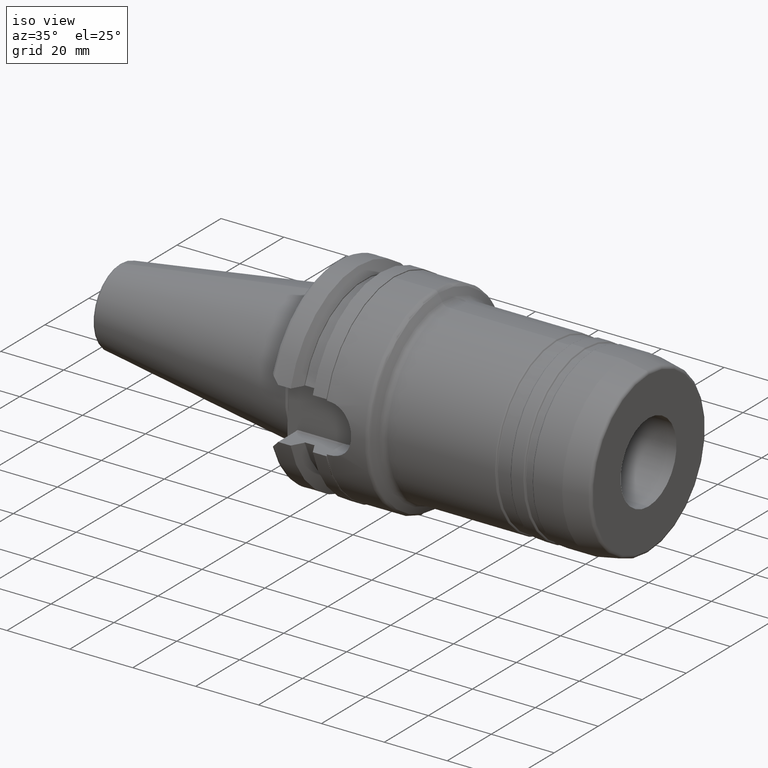
[diagram: clean part render]
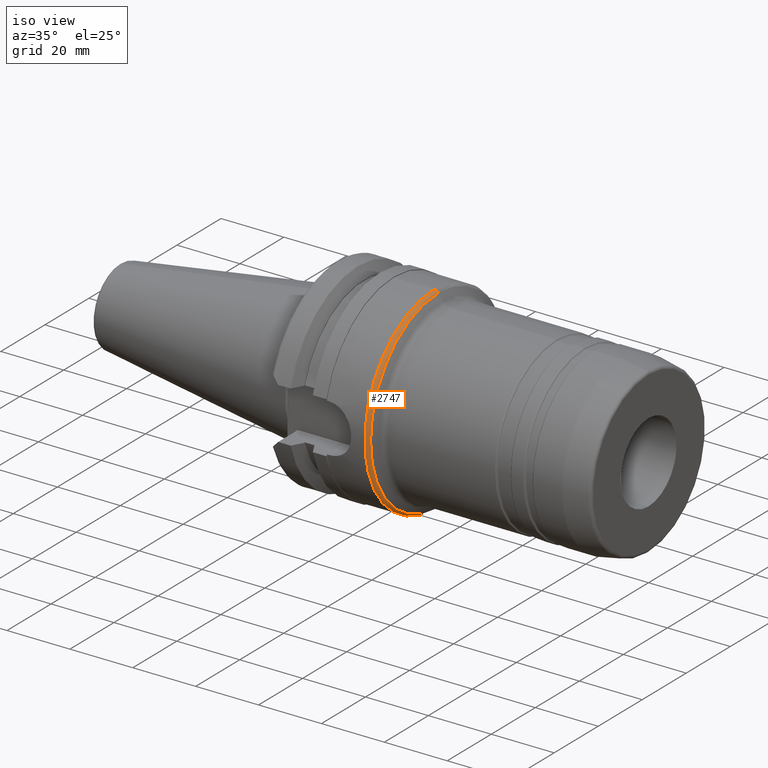
[diagram: same view with one face highlighted and labeled with its STEP entity id]
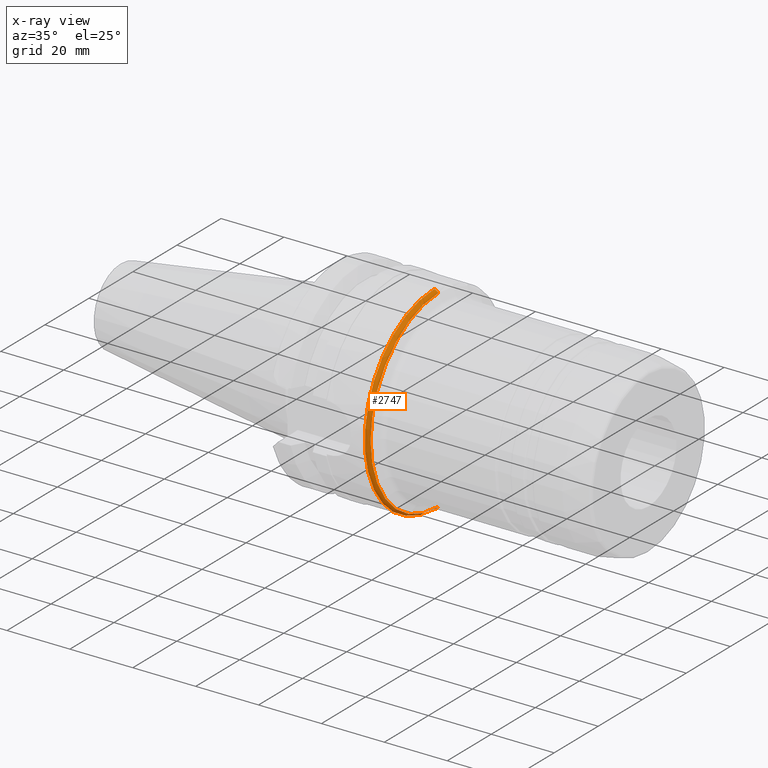
[diagram: x-ray of the same camera — body ghosted, the highlighted face saturated]
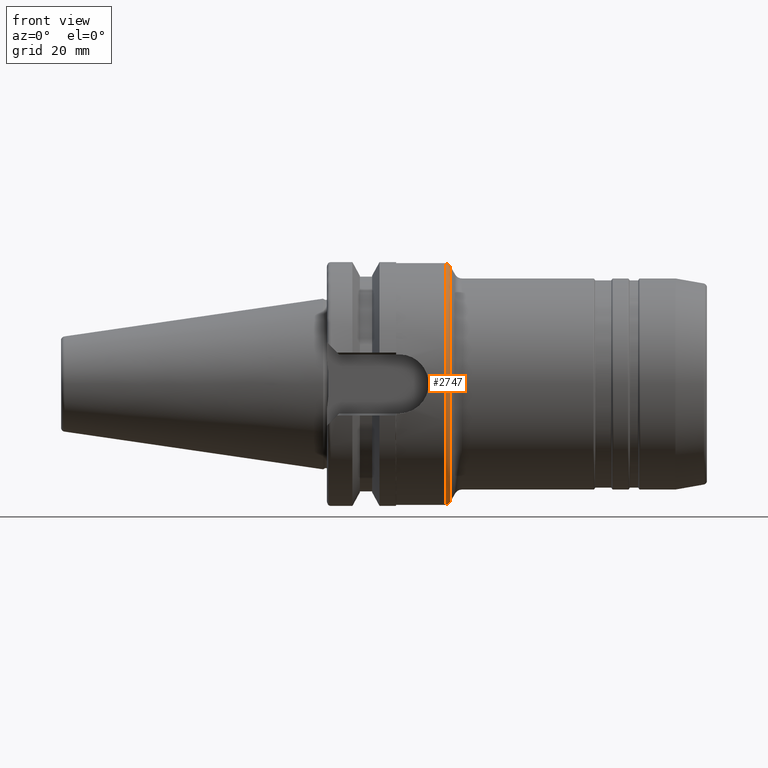
[diagram: same view with one face highlighted and labeled with its STEP entity id]
A machine part, iso view. The second image highlights one B-rep face of the part: STEP entity #2747.
The next image is the same camera in x-ray: the body ghosted, the highlighted face saturated — about 0% of this face is hidden behind the body in this view.
A second angle (front view) of the same face is appended — the face is thin or edge-on in the first view.
In plain terms, the highlighted toroidal blend (fillet) surface has major radius 30 mm and minor (blend) radius 1.5 mm.
Its self-contained STEP definition (entity closure, byte-faithful):
#640=CARTESIAN_POINT('',(3.182457351943E1,0.E0,-3.E1));
#641=DIRECTION('',(0.E0,1.E0,0.E0));
#642=DIRECTION('',(8.660254037844E-1,0.E0,-5.E-1));
#643=AXIS2_PLACEMENT_3D('',#640,#641,#642);
#645=CARTESIAN_POINT('',(3.182457351943E1,0.E0,3.E1));
#646=DIRECTION('',(0.E0,-1.E0,0.E0));
#647=DIRECTION('',(8.660254037844E-1,0.E0,5.E-1));
#648=AXIS2_PLACEMENT_3D('',#645,#646,#647);
#650=CARTESIAN_POINT('',(3.312361162511E1,0.E0,0.E0));
#651=DIRECTION('',(-1.E0,0.E0,0.E0));
#652=DIRECTION('',(0.E0,0.E0,-1.E0));
#653=AXIS2_PLACEMENT_3D('',#650,#651,#652);
#994=CARTESIAN_POINT('',(3.182457351943E1,0.E0,0.E0));
#995=DIRECTION('',(-1.E0,0.E0,0.E0));
#996=DIRECTION('',(0.E0,0.E0,-1.E0));
#997=AXIS2_PLACEMENT_3D('',#994,#995,#996);
#1637=CARTESIAN_POINT('',(3.312361162511E1,0.E0,-3.075E1));
#1638=VERTEX_POINT('',#1637);
#1639=CARTESIAN_POINT('',(3.182457351943E1,0.E0,-3.15E1));
#1640=VERTEX_POINT('',#1639);
#1691=CARTESIAN_POINT('',(3.312361162511E1,0.E0,3.075E1));
#1692=VERTEX_POINT('',#1691);
#1693=CARTESIAN_POINT('',(3.182457351943E1,0.E0,3.15E1));
#1694=VERTEX_POINT('',#1693);
#2733=CARTESIAN_POINT('',(3.182457351943E1,0.E0,0.E0));
#2734=DIRECTION('',(1.E0,0.E0,0.E0));
#2735=DIRECTION('',(0.E0,0.E0,1.E0));
#2736=AXIS2_PLACEMENT_3D('',#2733,#2734,#2735);
#2737=TOROIDAL_SURFACE('',#2736,3.E1,1.5E0);
#2739=ORIENTED_EDGE('',*,*,#2738,.T.);
#2741=ORIENTED_EDGE('',*,*,#2740,.T.);
#2743=ORIENTED_EDGE('',*,*,#2742,.F.);
#2744=ORIENTED_EDGE('',*,*,#2726,.F.);
#2745=EDGE_LOOP('',(#2739,#2741,#2743,#2744));
#2746=FACE_OUTER_BOUND('',#2745,.F.);
#2747=ADVANCED_FACE('',(#2746),#2737,.T.);
#644=CIRCLE('',#643,1.5E0);
#649=CIRCLE('',#648,1.5E0);
#654=CIRCLE('',#653,3.075E1);
#998=CIRCLE('',#997,3.15E1);
#2726=EDGE_CURVE('',#1638,#1692,#654,.T.);
#2738=EDGE_CURVE('',#1638,#1640,#644,.T.);
#2740=EDGE_CURVE('',#1640,#1694,#998,.T.);
#2742=EDGE_CURVE('',#1692,#1694,#649,.T.);